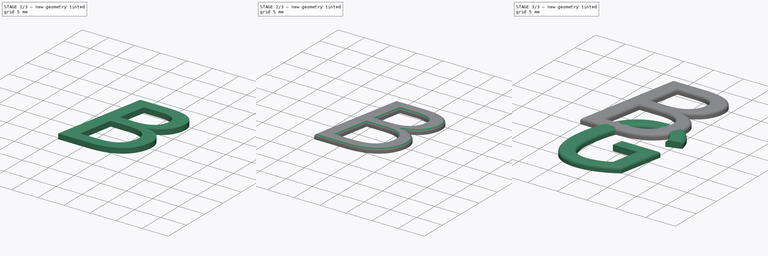
[diagram: build sequence overview — one tinted view per stage of 3, left to right]
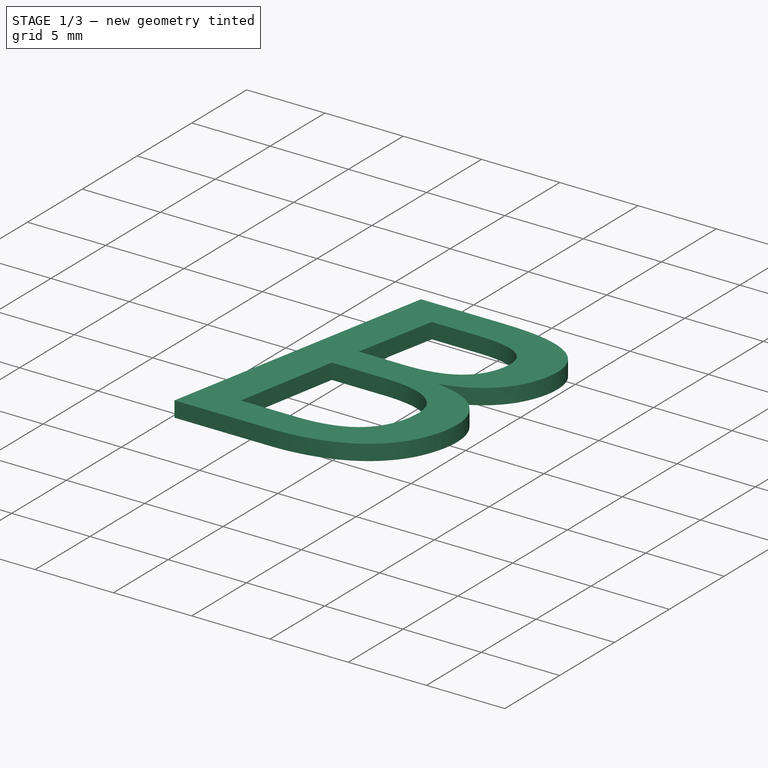
[diagram: stage 1 of 3 — iso view after this stage's code; geometry added in this stage tinted green]
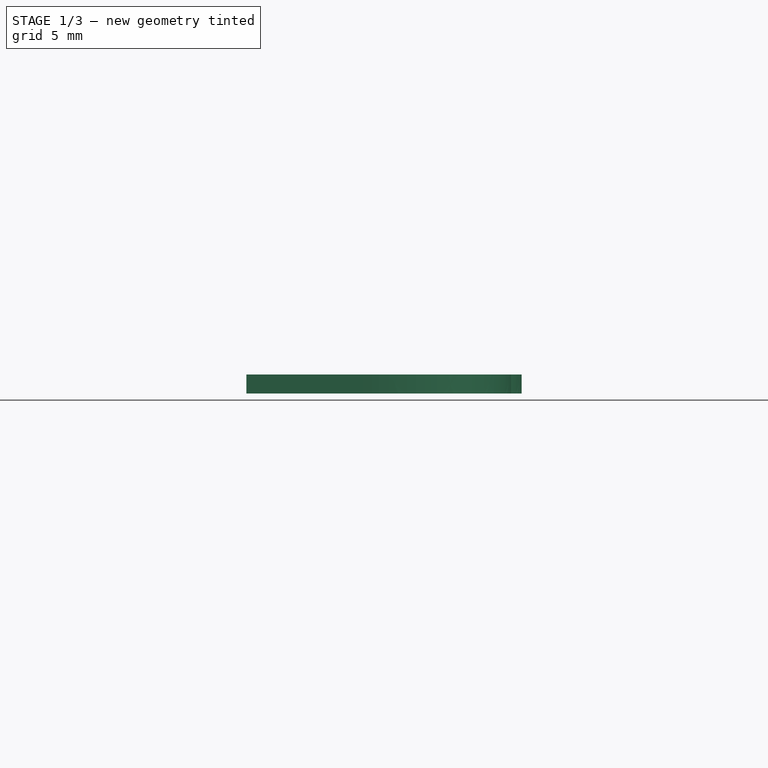
[diagram: stage 1 of 3 — front view after this stage's code; geometry added in this stage tinted green]
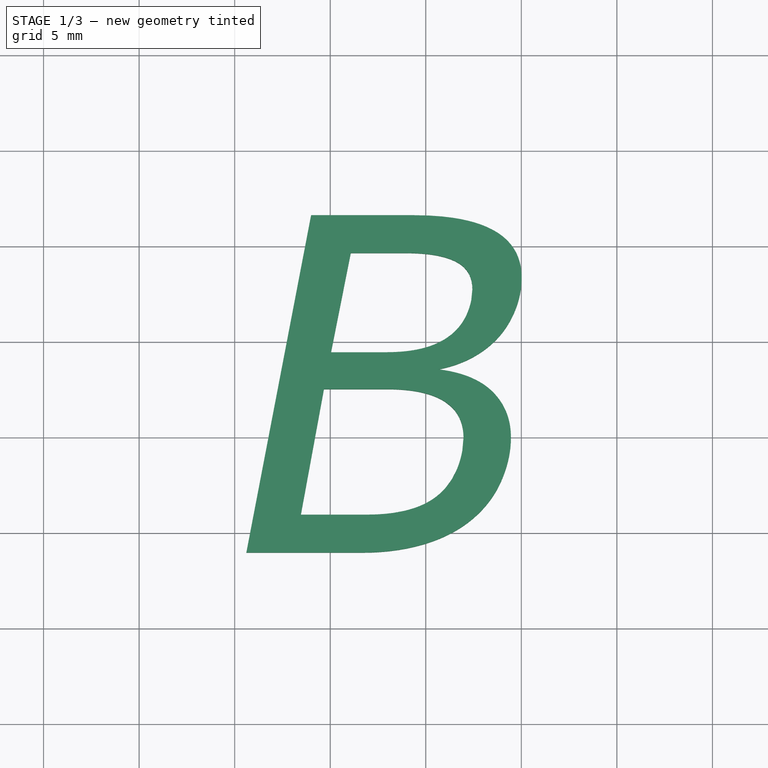
[diagram: stage 1 of 3 — top view after this stage's code; geometry added in this stage tinted green]
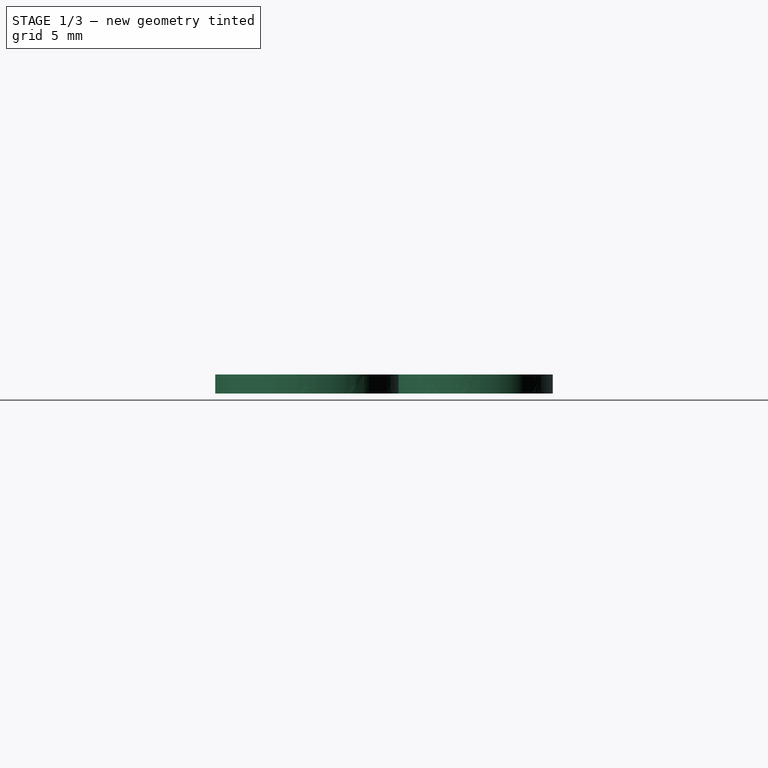
[diagram: stage 1 of 3 — right view after this stage's code; geometry added in this stage tinted green]
FCSTD DOCUMENT  (FreeCAD 0.18R14555 (Git shallow))
Label: cle_bonde
License: All rights reserved
LicenseURL: http://en.wikipedia.org/wiki/All_rights_reserved
objects: Part::Part2DObjectPython×2, Part::Extrusion×2, Part::Fillet×2, Sketcher::SketchObject×1, PartDesign::Pad×1, PartDesign::Body×1
note: 10 computed .brp shape members not serialized (recipe doc carries the construction recipe); baked Part::Feature solids carry a one-line shape summary decoded from their .brp

FEATURE [Sketcher::SketchObject] Sketch
  MapMode = 5
  Support = -> [XY_Plane]
  sketch-geometry (20):
    g0: LineSegment StartX=-25 StartY=-7.62663 StartZ=0 EndX=25 EndY=-7.62663 EndZ=0
    g1: LineSegment StartX=25 StartY=-7.62663 StartZ=0 EndX=25 EndY=12.3734 EndZ=0
    g2: LineSegment StartX=25 StartY=12.3734 StartZ=0 EndX=38.5 EndY=12.3734 EndZ=0
    g3: LineSegment StartX=38.5 StartY=12.3734 StartZ=0 EndX=38.5 EndY=37.3734 EndZ=0
    g4: LineSegment StartX=38.5 StartY=37.3734 StartZ=0 EndX=60 EndY=37.3734 EndZ=0
    g5: LineSegment StartX=60 StartY=37.3734 StartZ=0 EndX=60 EndY=57.3734 EndZ=0
    g6: LineSegment StartX=60 StartY=57.3734 StartZ=0 EndX=22 EndY=57.3734 EndZ=0
    g7: LineSegment StartX=22 StartY=57.3734 StartZ=0 EndX=22 EndY=64.3734 EndZ=0
    g8: LineSegment StartX=21 StartY=64.3734 StartZ=0 EndX=21 EndY=71.3734 EndZ=0
    g9: LineSegment StartX=21 StartY=71.3734 StartZ=0 EndX=-21 EndY=71.3734 EndZ=0
    g10: LineSegment StartX=-25 StartY=-7.62663 StartZ=0 EndX=-25 EndY=12.3734 EndZ=0
    g11: LineSegment StartX=-25 StartY=12.3734 StartZ=0 EndX=-38.5 EndY=12.3734 EndZ=0
    g12: LineSegment StartX=-38.5 StartY=12.3734 StartZ=0 EndX=-38.5 EndY=37.3734 EndZ=0
    g13: LineSegment StartX=-38.5 StartY=37.3734 StartZ=0 EndX=-60 EndY=37.3734 EndZ=0
    g14: LineSegment StartX=-60 StartY=37.3734 StartZ=0 EndX=-60 EndY=57.3734 EndZ=0
    g15: LineSegment StartX=-60 StartY=57.3734 StartZ=0 EndX=-22 EndY=57.3734 EndZ=0
    g16: LineSegment StartX=-22 StartY=57.3734 StartZ=0 EndX=-22 EndY=64.3734 EndZ=0
    g17: LineSegment StartX=-22 StartY=64.3734 StartZ=0 EndX=-21 EndY=64.3734 EndZ=0
    g18: LineSegment StartX=-21 StartY=64.3734 StartZ=0 EndX=-21 EndY=71.3734 EndZ=0
    g19: LineSegment StartX=21 StartY=64.3734 StartZ=0 EndX=22 EndY=64.3734 EndZ=0
  constraints (54):
    c: Vertical(g1)
    c: Horizontal(g2)
    c: Coincident(g3,g2)
    c: Vertical(g3)
    c: Horizontal(g4)
    c: Coincident(g5,g4)
    c: Vertical(g5)
    c: Horizontal(g6)
    c: Coincident(g7,g6)
    c: Vertical(g7)
    c: Vertical(g8)
    c: Coincident(g10,g0)
    c: Horizontal(g11)
    c: Vertical(g12)
    c: Horizontal(g13)
    c: Vertical(g14)
    c: Horizontal(g15)
    c: Horizontal(g17)
    c: Symmetric(g0,g0,g-2)
    c: DistanceX(g0,g0) = 50
    c: DistanceX(g11,g2) = 77
    c: Coincident(g1,g0)
    c: Coincident(g1,g2)
    c: Symmetric(g2,g11,g-2)
    c: Coincident(g11,g10)
    c: Vertical(g10)
    c: Coincident(g4,g3)
    c: DistanceY(g0,g2) = 20
    c: DistanceY(g2,g4) = 25
    c: DistanceY(g4,g5) = 20
    c: Coincident(g6,g5)
    c: Coincident(g12,g11)
    c: Coincident(g13,g12)
    c: Coincident(g13,g14)
    c: Horizontal(g3,g12)
    c: Coincident(g15,g14)
    c: Vertical(g16)
    c: Coincident(g15,g16)
    c: Coincident(g17,g16)
    c: Vertical(g18)
    c: Coincident(g18,g17)
    c: Coincident(g8,g9)
    c: Coincident(g9,g18)
    c: Coincident(g19,g8)
    c: Coincident(g19,g7)
    c: Horizontal(g19)
    c: DistanceX(g9,g8) = 42
    c: DistanceX(g16,g7) = 44
    c: DistanceY(g8,g8) = 7
    c: Symmetric(g9,g8,g-2)
    c: Symmetric(g16,g7,g-2)
    c: DistanceX(g14,g5) = 120
    c: Symmetric(g5,g14,g-2)
    c: DistanceY(g5,g7) = 7
FEATURE [PartDesign::Pad] Pad
  Length = 5
  Length2 = 100
  Profile = -> Sketch
  Type = 0
FEATURE [PartDesign::Body] Body
  Group = -> [Sketch,Pad]
  Origin = -> Origin
  Tip = -> Pad
FEATURE [Part::Part2DObjectPython] ShapeString  label="B_ShapeString"  # Draft 2D object (typed FeaturePython)
  FontFile = <path>
  Placement = pos=(-10.13,43.98,5) rot=(0,0,1;0rad)
  Size = 20
  String = B
  Support = -> [Pad]
  Tracking = 0
FEATURE [Part::Part2DObjectPython] ShapeString001  label="G_ShapeString"  # Draft 2D object (typed FeaturePython)
  FontFile = <path>
  Placement = pos=(-8.65,32.01,5) rot=(0,0,1;0rad)
  Size = 20
  String = G
  Tracking = 0
FEATURE [Part::Extrusion] Extrude003
  Base = -> ShapeString
  Dir = (0,0,1)
  DirMode = 0
  FaceMakerClass = Part::FaceMakerBullseye
  LengthFwd = 1
  LengthRev = 0
  Solid = false
  Symmetric = false
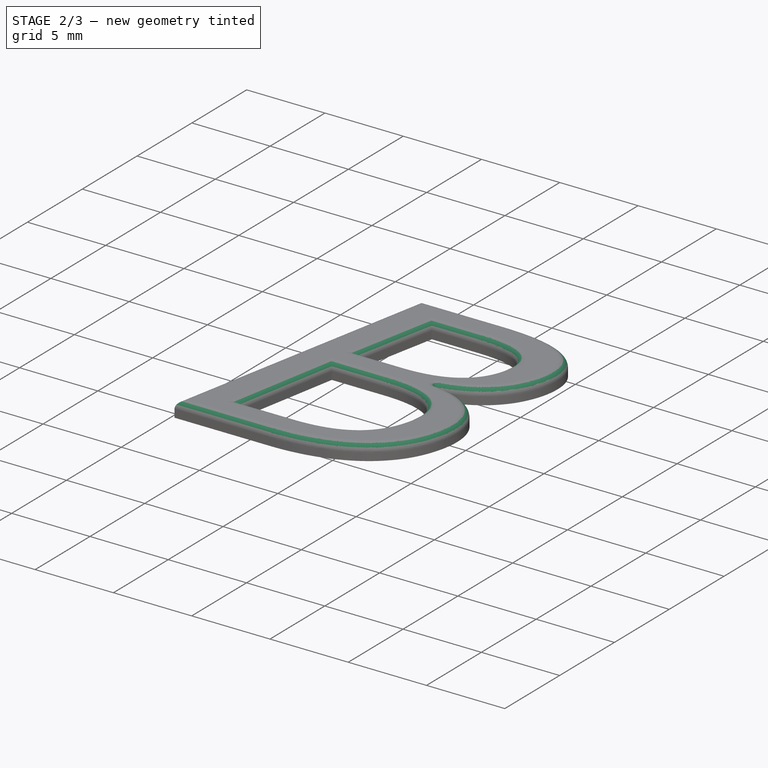
[diagram: stage 2 of 3 — iso view after this stage's code; geometry added in this stage tinted green]
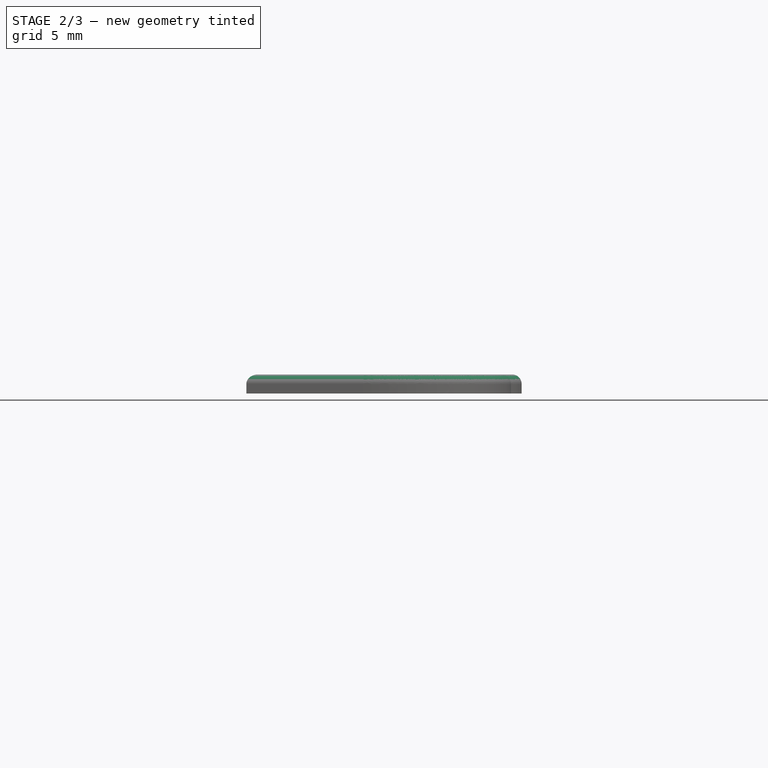
[diagram: stage 2 of 3 — front view after this stage's code; geometry added in this stage tinted green]
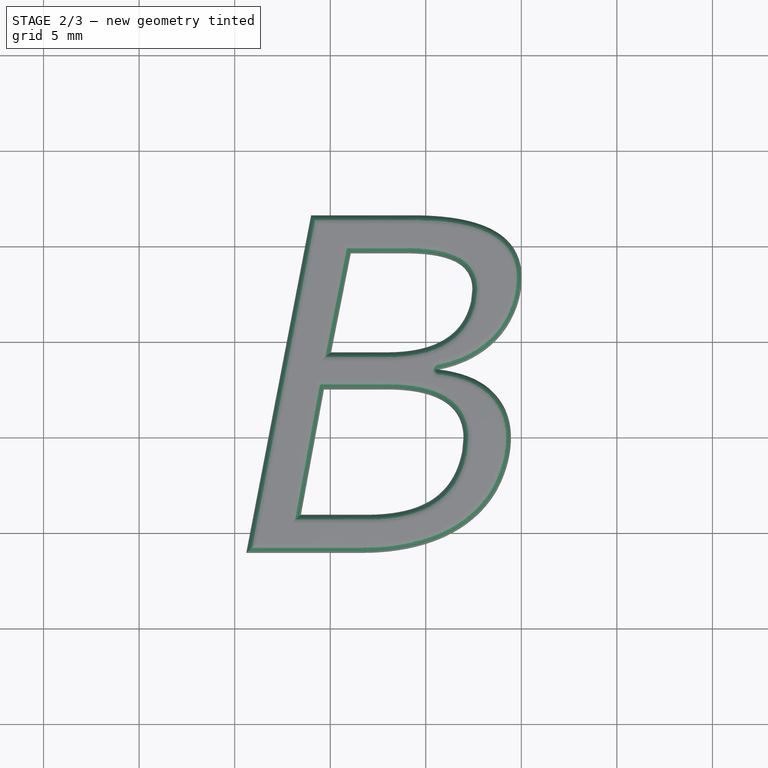
[diagram: stage 2 of 3 — top view after this stage's code; geometry added in this stage tinted green]
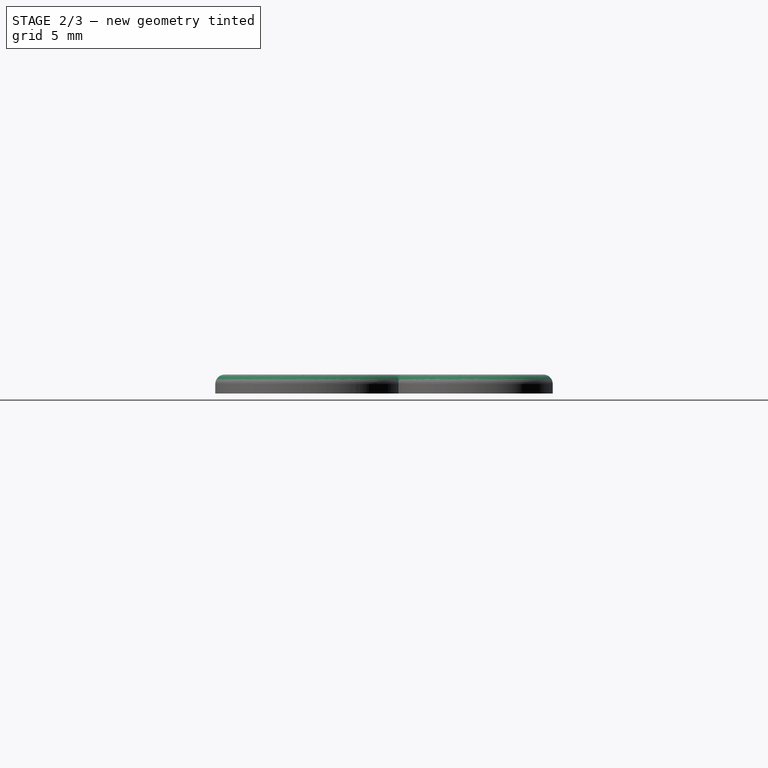
[diagram: stage 2 of 3 — right view after this stage's code; geometry added in this stage tinted green]
FEATURE [Part::Fillet] Fillet001
  Base = -> Extrude003
  Edges = 11 edges r=0.5: [Edge7,Edge13,Edge28,Edge43,Edge49,Edge52,Edge58,Edge64,Edge73,Edge79,Edge81]
note: 2 file-system paths scrubbed to <path> (originals preserved in the JSON sidecar)
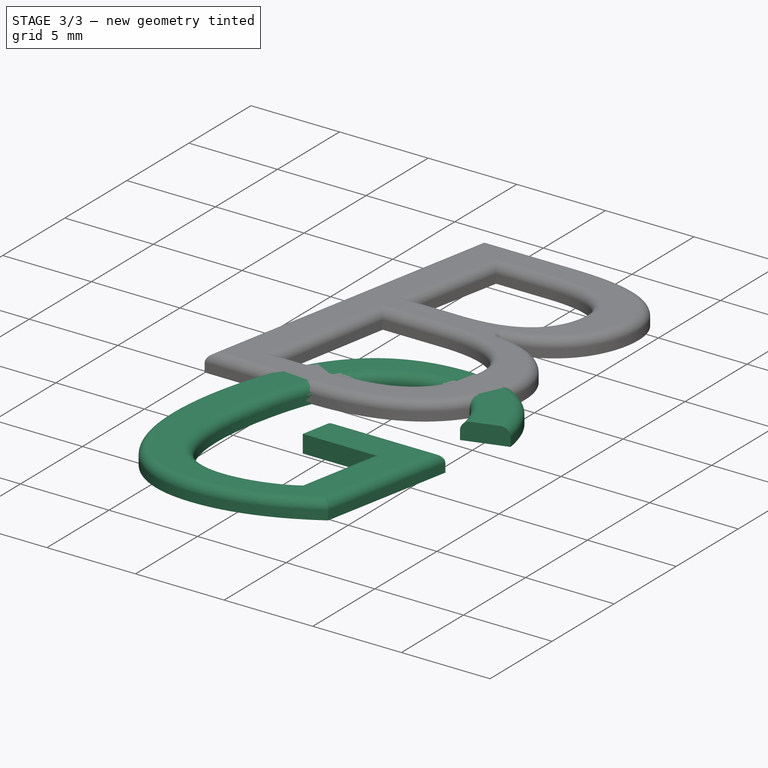
[diagram: stage 3 of 3 — iso view after this stage's code; geometry added in this stage tinted green]
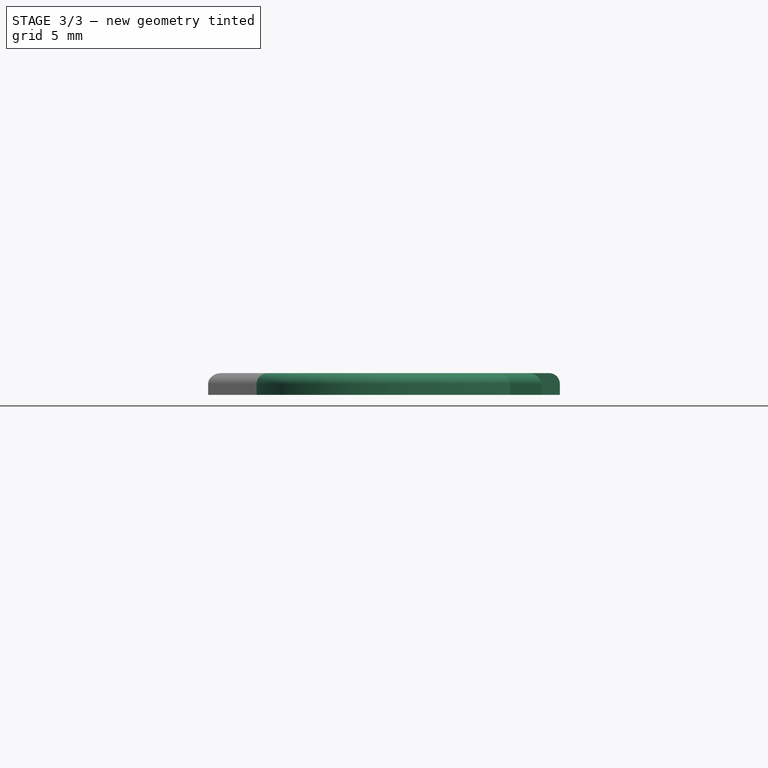
[diagram: stage 3 of 3 — front view after this stage's code; geometry added in this stage tinted green]
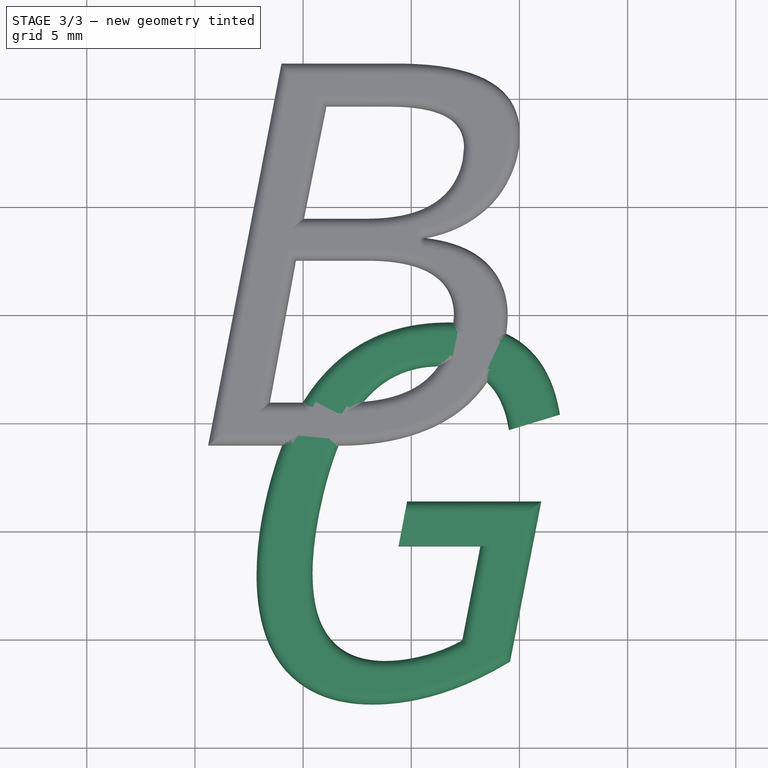
[diagram: stage 3 of 3 — top view after this stage's code; geometry added in this stage tinted green]
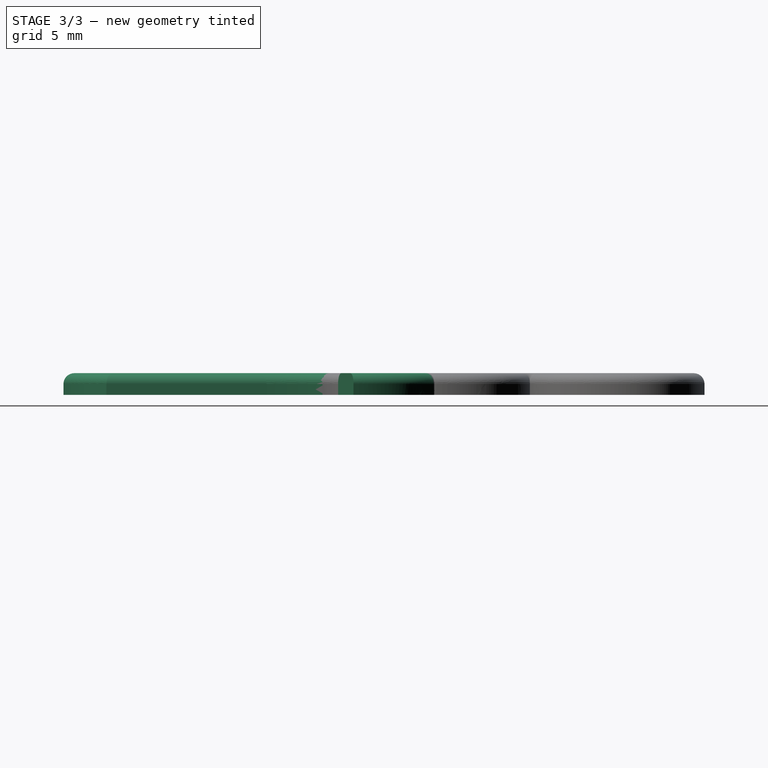
[diagram: stage 3 of 3 — right view after this stage's code; geometry added in this stage tinted green]
FEATURE [Part::Extrusion] Extrude004
  Base = -> ShapeString001
  Dir = (0,0,1)
  DirMode = 0
  FaceMakerClass = Part::FaceMakerBullseye
  LengthFwd = 1
  LengthRev = 0
  Solid = false
  Symmetric = false
FEATURE [Part::Fillet] Fillet
  Base = -> Extrude004
  Edges = 8 edges r=0.5: [Edge10,Edge16,Edge22,Edge40,Edge52,Edge61,Edge64,Edge66]
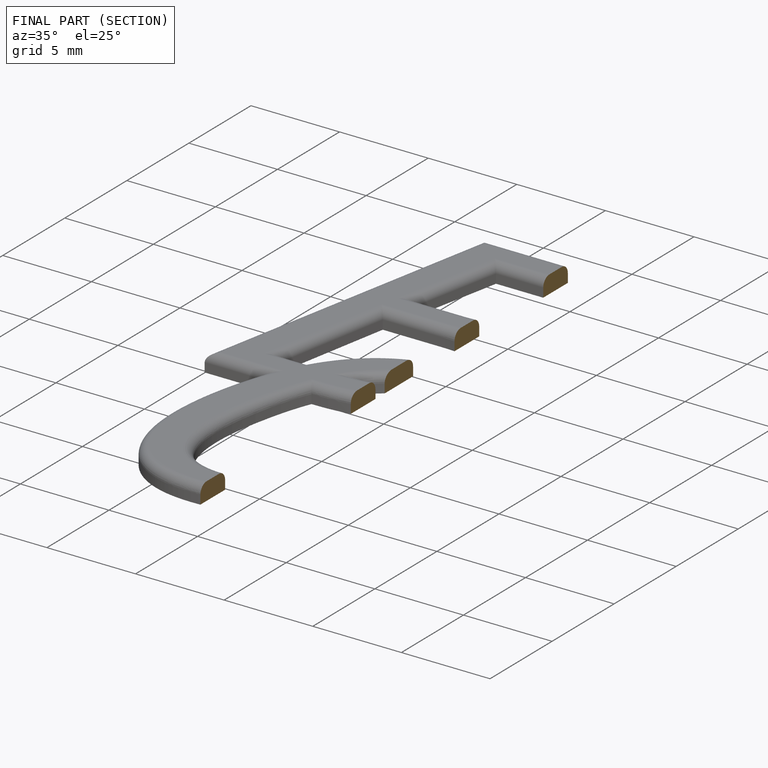
[diagram: finished part — half-section view (interior)]
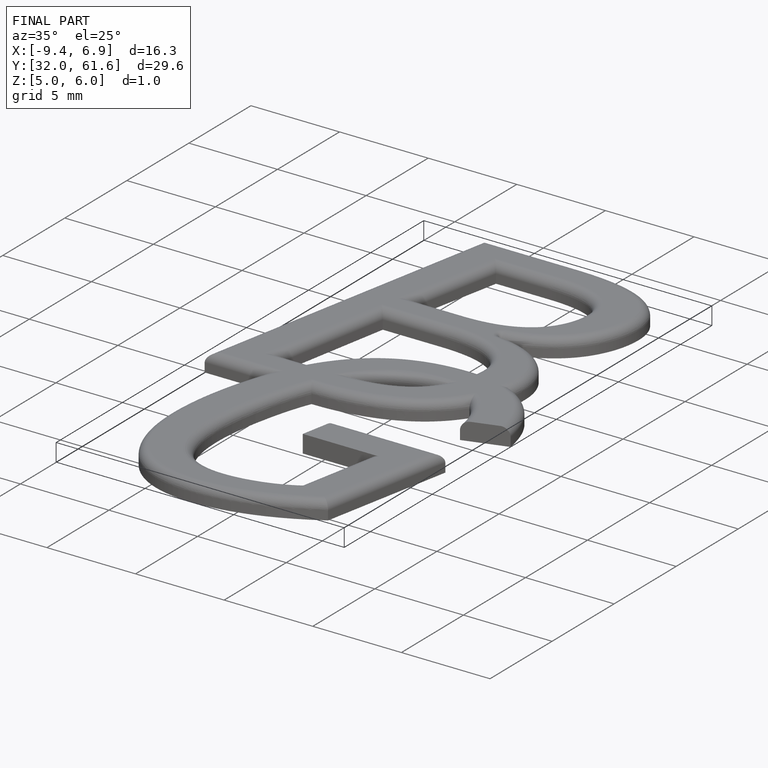
[diagram: finished part — iso view with bounding-box wireframe]
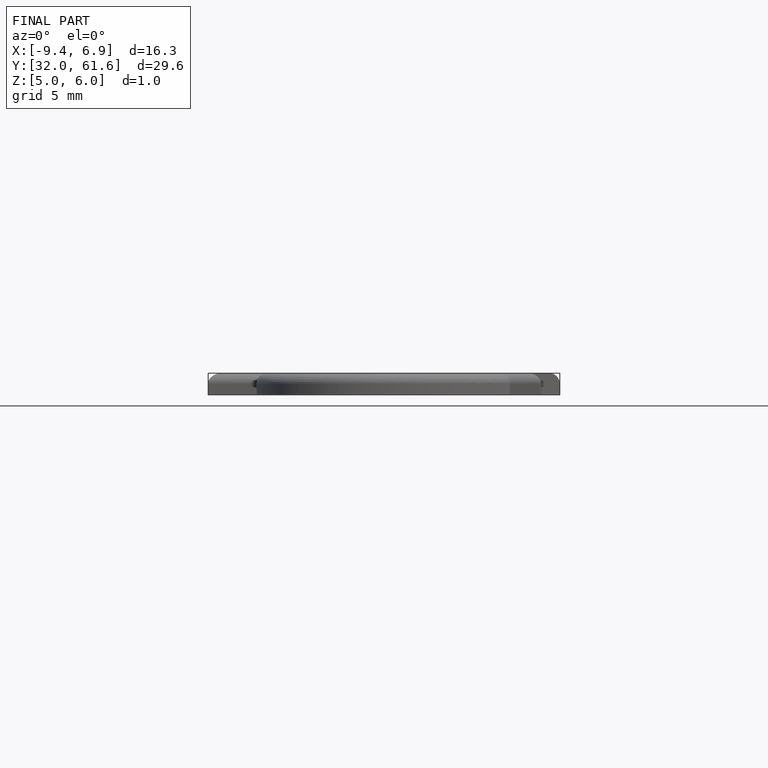
[diagram: finished part — front view with bounding-box wireframe]
